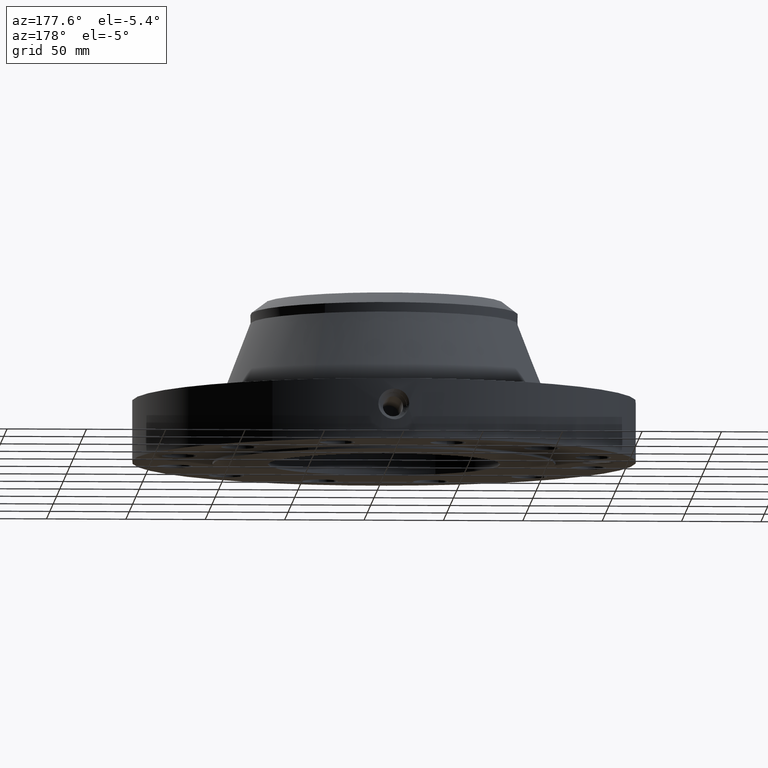
[diagram: clean part render]
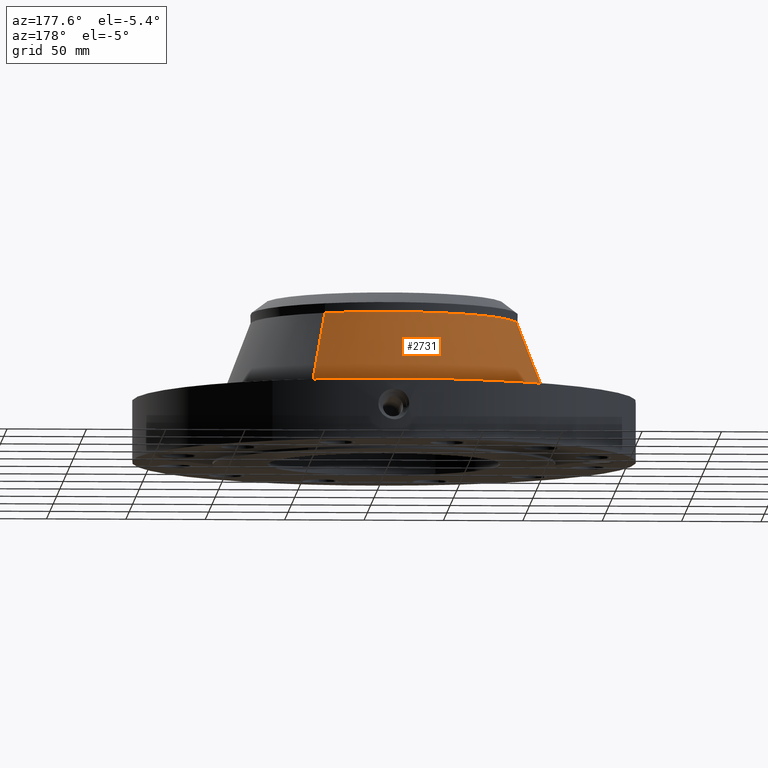
[diagram: same view with one face highlighted and labeled with its STEP entity id]
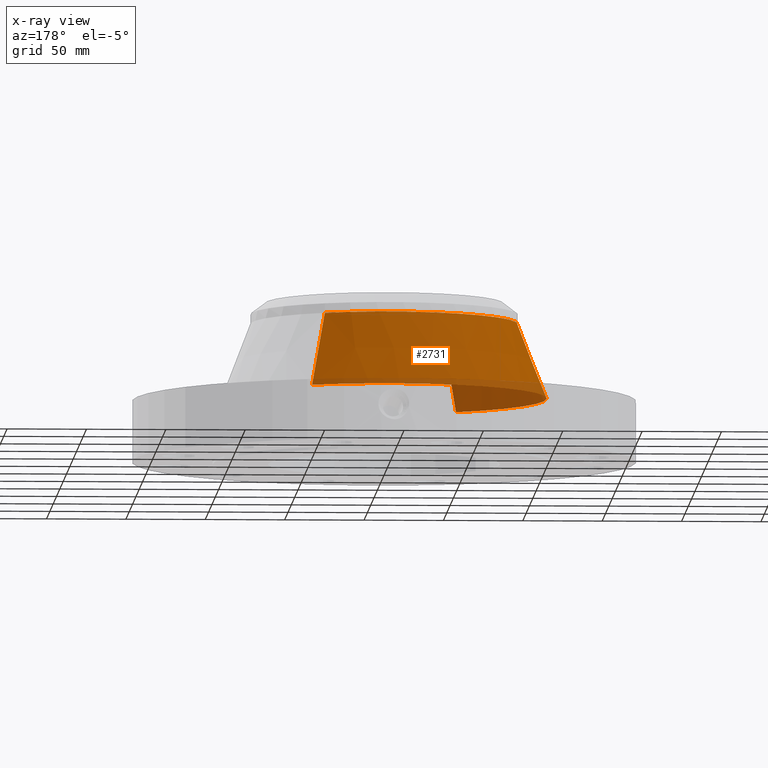
[diagram: x-ray of the same camera — body ghosted, the highlighted face saturated]
A machine part, auxiliary view. The second image highlights one B-rep face of the part: STEP entity #2731.
The next image is the same camera in x-ray: the body ghosted, the highlighted face saturated — about 19% of this face is hidden behind the body in this view.
In plain terms, the highlighted conical surface has half-angle 21.099 deg.
Its self-contained STEP definition (entity closure, byte-faithful):
#2029=AXIS2_PLACEMENT_3D('Circle Axis2P3D',#2027,#2028,$) ;
#2692=AXIS2_PLACEMENT_3D('Cone Axis2P3D',#2689,#2690,#2691) ;
#2722=AXIS2_PLACEMENT_3D('Circle Axis2P3D',#2720,#2721,$) ;
#2005=CARTESIAN_POINT('Vertex',(1.93226031698,3.53697878539,1.63680199496)) ;
#2012=CARTESIAN_POINT('Vertex',(-1.93226031698,-3.53697878539,1.63680199496)) ;
#2027=CARTESIAN_POINT('Axis2P3D Location',(0.,0.,1.63680199496)) ;
#2689=CARTESIAN_POINT('Axis2P3D Location',(0.,0.,3.49079539917)) ;
#2694=CARTESIAN_POINT('Line Origine',(1.76077798873,3.22308248904,2.56379869707)) ;
#2698=CARTESIAN_POINT('Vertex',(1.58929566048,2.90918619268,3.49079539917)) ;
#2705=CARTESIAN_POINT('Vertex',(-1.58929566048,-2.90918619268,3.49079539917)) ;
#2708=CARTESIAN_POINT('Line Origine',(-1.76077798873,-3.22308248904,2.56379869707)) ;
#2720=CARTESIAN_POINT('Axis2P3D Location',(0.,0.,3.49079539917)) ;
#2028=DIRECTION('Axis2P3D Direction',(0.,0.,-0.0393700787402)) ;
#2690=DIRECTION('Axis2P3D Direction',(0.,0.,-0.0393700787402)) ;
#2691=DIRECTION('Axis2P3D XDirection',(-0.0188750212049,-0.0345504945626,0.)) ;
#2695=DIRECTION('Vector Direction',(0.00679469384317,0.0124376036527,-0.0367306581885)) ;
#2709=DIRECTION('Vector Direction',(-0.00679469384317,-0.0124376036527,-0.0367306581885)) ;
#2721=DIRECTION('Axis2P3D Direction',(0.,0.,-0.0393700787402)) ;
#2696=VECTOR('Line Direction',#2695,0.0393700787402) ;
#2710=VECTOR('Line Direction',#2709,0.0393700787402) ;
#2726=ORIENTED_EDGE('',*,*,#2031,.F.) ;
#2727=ORIENTED_EDGE('',*,*,#2712,.T.) ;
#2728=ORIENTED_EDGE('',*,*,#2724,.T.) ;
#2729=ORIENTED_EDGE('',*,*,#2700,.F.) ;
#2731=ADVANCED_FACE('PartBody',(#2730),#2693,.T.) ;
#2030=CIRCLE('generated circle',#2029,4.03036584703) ;
#2723=CIRCLE('generated circle',#2722,3.31500000001) ;
#2693=CONICAL_SURFACE('Cone',#2692,3.31500000001,0.3682500741) ;
#2031=EDGE_CURVE('',#2013,#2006,#2030,.T.) ;
#2700=EDGE_CURVE('',#2006,#2699,#2697,.F.) ;
#2712=EDGE_CURVE('',#2013,#2706,#2711,.F.) ;
#2724=EDGE_CURVE('',#2706,#2699,#2723,.T.) ;
#2725=EDGE_LOOP('',(#2726,#2727,#2728,#2729)) ;
#2730=FACE_OUTER_BOUND('',#2725,.T.) ;
#2697=LINE('Line',#2694,#2696) ;
#2711=LINE('Line',#2708,#2710) ;
#2006=VERTEX_POINT('',#2005) ;
#2013=VERTEX_POINT('',#2012) ;
#2699=VERTEX_POINT('',#2698) ;
#2706=VERTEX_POINT('',#2705) ;